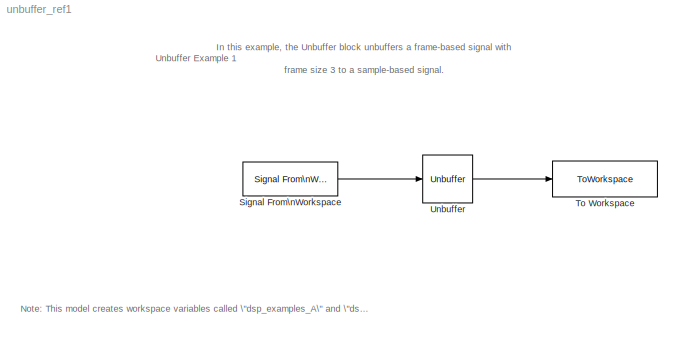
MODEL unbuffer_ref1
KIND model
CONFIG AbsTol = auto
CONFIG FixedStep = auto
CONFIG MaxStep = auto
CONFIG MinStep = auto
CONFIG PreLoadFcn = dsp_examples_A = [1:10;zeros(1,10);1 1 0 0 1 1 0 0 1 1;-1:-1:-10]'; whos dsp_examples_*
CONFIG RelTol = 1e-3
CONFIG Solver = ode45
CONFIG SolverMode = Auto
CONFIG StartTime = 0.0
CONFIG StopTime = 10.0
BLOCK [Reference] Signal From\nWorkspace  REF=dspsrcs3/Signal From\nWorkspace
  OutputAfterFinalValue = Setting To Zero
  Ports = [0, 1]
  SourceBlock = dspsrcs3/Signal From\nWorkspace
  SourceType = Signal From Workspace
  Ts = 1
  X = dsp_examples_A
  nsamps = 3
BLOCK [ToWorkspace] To Workspace
  Decimation = 1
  MaxDataPoints = inf
  SampleTime = -1
  SaveFormat = Array
  VariableName = dsp_examples_yout
BLOCK [Reference] Unbuffer  REF=dspbuff3/Unbuffer
  Ports = [1, 1]
  SourceBlock = dspbuff3/Unbuffer
  SourceType = Unbuffer
  ic = 0
LINE Signal From\nWorkspace:1 -> Unbuffer:1
LINE Unbuffer:1 -> To Workspace:1
